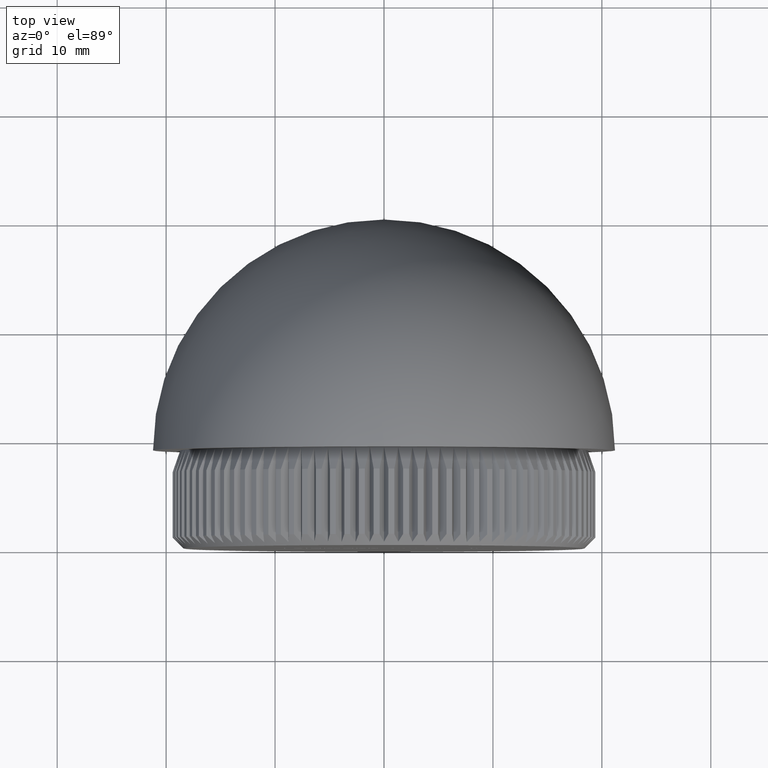
[diagram: clean part render]
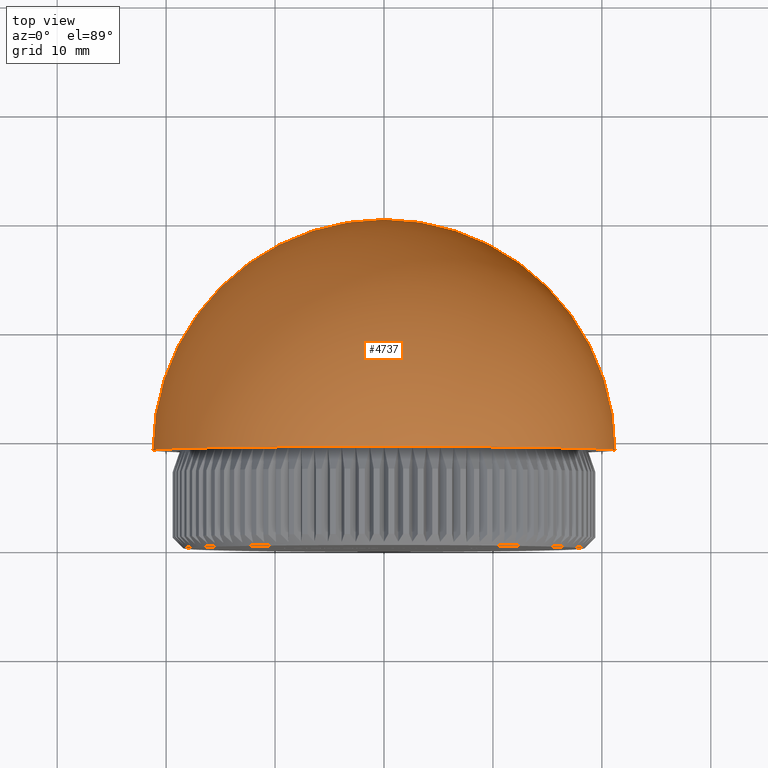
[diagram: same view with one face highlighted and labeled with its STEP entity id]
A machine part, top view. The second image highlights one B-rep face of the part: STEP entity #4737.
In plain terms, the highlighted spherical surface has radius 21.2 mm.
Its self-contained STEP definition (entity closure, byte-faithful):
#201 = FACE_OUTER_BOUND ( 'NONE', #8761, .T. ) ;
#238 = ORIENTED_EDGE ( 'NONE', *, *, #18816, .F. ) ;
#1336 = AXIS2_PLACEMENT_3D ( 'NONE', #9394, #7769, #4678 ) ;
#1824 = CIRCLE ( 'NONE', #1336, 21.20000000000000300 ) ;
#4330 = CIRCLE ( 'NONE', #15228, 21.20000000000000300 ) ;
#4678 = DIRECTION ( 'NONE',  ( -1.000000000000000000, 0.0000000000000000000, 0.0000000000000000000 ) ) ;
#4737 = ADVANCED_FACE ( 'NONE', ( #201 ), #16516, .T. ) ;
#4770 = CARTESIAN_POINT ( 'NONE',  ( 1.298125607094238800E-015, 30.19999999999999900, 0.0000000000000000000 ) ) ;
#5063 = AXIS2_PLACEMENT_3D ( 'NONE', #16697, #6144, #18709 ) ;
#5489 = AXIS2_PLACEMENT_3D ( 'NONE', #17642, #13795, #15611 ) ;
#6144 = DIRECTION ( 'NONE',  ( 1.224646799147353200E-016, 4.659798876769463300E-045, 1.000000000000000000 ) ) ;
#7410 = VERTEX_POINT ( 'NONE', #8937 ) ;
#7769 = DIRECTION ( 'NONE',  ( 0.0000000000000000000, 0.0000000000000000000, -1.000000000000000000 ) ) ;
#8199 = EDGE_CURVE ( 'NONE', #14768, #9600, #13875, .T. ) ;
#8761 = EDGE_LOOP ( 'NONE', ( #10465, #12920, #238 ) ) ;
#8767 = DIRECTION ( 'NONE',  ( 1.000000000000000000, 0.0000000000000000000, 0.0000000000000000000 ) ) ;
#8937 = CARTESIAN_POINT ( 'NONE',  ( 21.20000000000000300, 8.999999999999998200, 0.0000000000000000000 ) ) ;
#9394 = CARTESIAN_POINT ( 'NONE',  ( -1.149114390993522900E-027, 8.999999999999996400, 0.0000000000000000000 ) ) ;
#9600 = VERTEX_POINT ( 'NONE', #19063 ) ;
#10465 = ORIENTED_EDGE ( 'NONE', *, *, #17319, .F. ) ;
#12238 = DIRECTION ( 'NONE',  ( 3.805014539713652200E-029, -1.000000000000000000, -0.0000000000000000000 ) ) ;
#12920 = ORIENTED_EDGE ( 'NONE', *, *, #8199, .T. ) ;
#13795 = DIRECTION ( 'NONE',  ( 0.0000000000000000000, -0.0000000000000000000, 1.000000000000000000 ) ) ;
#13875 = CIRCLE ( 'NONE', #5063, 21.20000000000000300 ) ;
#14768 = VERTEX_POINT ( 'NONE', #4770 ) ;
#15228 = AXIS2_PLACEMENT_3D ( 'NONE', #21156, #12238, #8767 ) ;
#15611 = DIRECTION ( 'NONE',  ( 1.000000000000000000, 0.0000000000000000000, 0.0000000000000000000 ) ) ;
#16516 = SPHERICAL_SURFACE ( 'NONE', #5489, 21.20000000000000300 ) ;
#16697 = CARTESIAN_POINT ( 'NONE',  ( -1.149114390993522900E-027, 8.999999999999996400, 0.0000000000000000000 ) ) ;
#17319 = EDGE_CURVE ( 'NONE', #14768, #7410, #1824, .T. ) ;
#17642 = CARTESIAN_POINT ( 'NONE',  ( -1.149114390993522900E-027, 8.999999999999996400, 0.0000000000000000000 ) ) ;
#18709 = DIRECTION ( 'NONE',  ( 1.000000000000000000, 0.0000000000000000000, -1.224646799147353200E-016 ) ) ;
#18816 = EDGE_CURVE ( 'NONE', #7410, #9600, #4330, .T. ) ;
#19063 = CARTESIAN_POINT ( 'NONE',  ( -21.20000000000000300, 8.999999999999998200, 2.596251214192388800E-015 ) ) ;
#21156 = CARTESIAN_POINT ( 'NONE',  ( -3.424513085742286300E-028, 8.999999999999998200, 0.0000000000000000000 ) ) ;